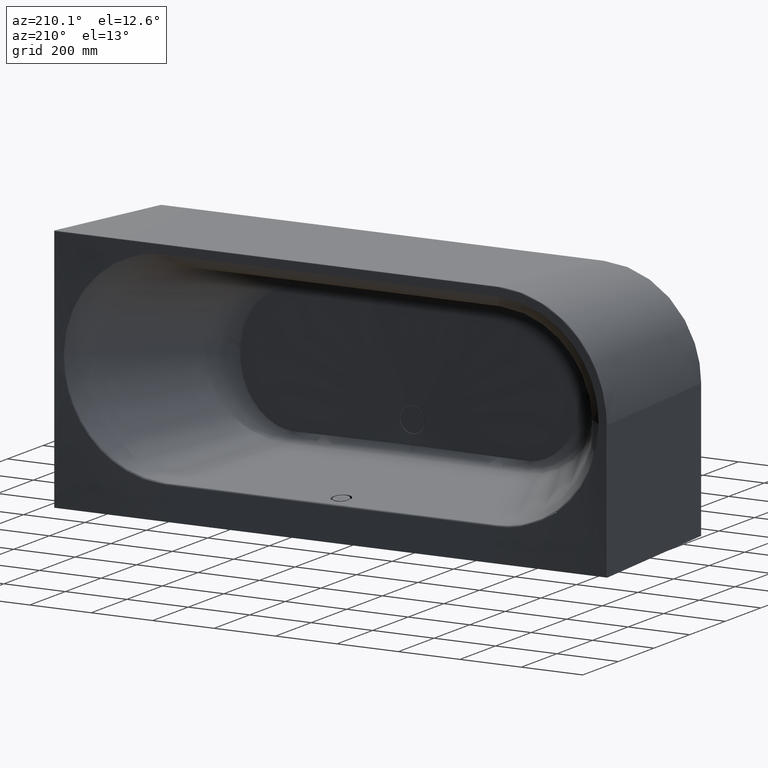
[diagram: clean part render]
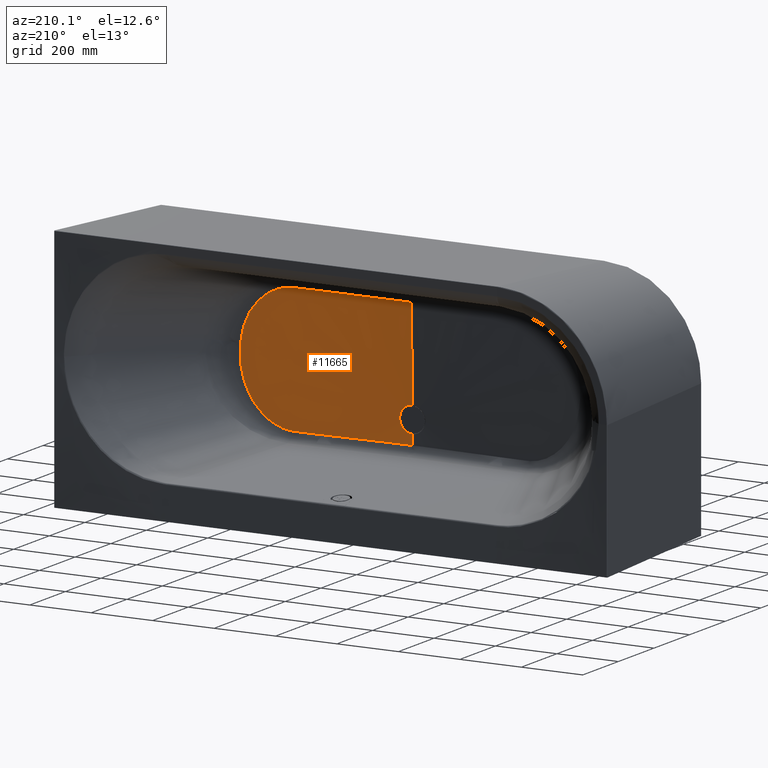
[diagram: same view with one face highlighted and labeled with its STEP entity id]
A machine part, auxiliary view. The second image highlights one B-rep face of the part: STEP entity #11665.
In plain terms, the highlighted conical surface has half-angle 88.5 deg.
Its self-contained STEP definition (entity closure, byte-faithful):
#2704=CARTESIAN_POINT('',(0.E0,-4.599474720275E2,-1.338874556674E2));
#2705=DIRECTION('',(0.E0,1.E0,0.E0));
#2706=DIRECTION('',(0.E0,0.E0,1.E0));
#2707=AXIS2_PLACEMENT_3D('',#2704,#2705,#2706);
#2709=CARTESIAN_POINT('',(-7.786323620313E-9,-4.591004420748E2,
-2.082401845906E2));
#2710=CARTESIAN_POINT('',(1.650915897211E0,-4.591004414759E2,
-2.082402131988E2));
#2711=CARTESIAN_POINT('',(4.935865286333E0,-4.590975894704E2,
-2.082396367829E2));
#2712=CARTESIAN_POINT('',(9.873326611859E0,-4.590848259537E2,
-2.082371513231E2));
#2713=CARTESIAN_POINT('',(1.480828591157E1,-4.590637337074E2,
-2.082331718072E2));
#2714=CARTESIAN_POINT('',(1.974789894105E1,-4.590345470903E2,
-2.082279346083E2));
#2715=CARTESIAN_POINT('',(2.469883357696E1,-4.589975248142E2,
-2.082217488496E2));
#2716=CARTESIAN_POINT('',(2.967275630651E1,-4.589529101565E2,
-2.082149481570E2));
#2717=CARTESIAN_POINT('',(3.468442830560E1,-4.589008968055E2,
-2.082078773653E2));
#2718=CARTESIAN_POINT('',(3.975168728515E1,-4.588416051759E2,
-2.082008719244E2));
#2719=CARTESIAN_POINT('',(4.489480469652E1,-4.587750690995E2,
-2.081942510560E2));
#2720=CARTESIAN_POINT('',(5.013616963831E1,-4.587012288354E2,
-2.081883141830E2));
#2721=CARTESIAN_POINT('',(5.550005825305E1,-4.586199283577E2,
-2.081833418770E2));
#2722=CARTESIAN_POINT('',(6.101258423221E1,-4.585309141348E2,
-2.081795986273E2));
#2723=CARTESIAN_POINT('',(6.670178195909E1,-4.584338339458E2,
-2.081773366687E2));
#2724=CARTESIAN_POINT('',(7.259781499419E1,-4.583282345548E2,
-2.081768000180E2));
#2725=CARTESIAN_POINT('',(7.873329155187E1,-4.582135575761E2,
-2.081782283037E2));
#2726=CARTESIAN_POINT('',(8.514368049998E1,-4.580891330352E2,
-2.081818600896E2));
#2727=CARTESIAN_POINT('',(9.186782704157E1,-4.579541702395E2,
-2.081879354709E2));
#2728=CARTESIAN_POINT('',(9.894857509752E1,-4.578077455647E2,
-2.081966977129E2));
#2729=CARTESIAN_POINT('',(1.064335105564E2,-4.576487866918E2,
-2.082083936066E2));
#2730=CARTESIAN_POINT('',(1.143758466970E2,-4.574760527118E2,
-2.082232720811E2));
#2731=CARTESIAN_POINT('',(1.228354829343E2,-4.572881093027E2,
-2.082415803511E2));
#2732=CARTESIAN_POINT('',(1.318802752743E2,-4.570832980022E2,
-2.082635565150E2));
#2733=CARTESIAN_POINT('',(1.415875763656E2,-4.568596981314E2,
-2.082894169273E2));
#2734=CARTESIAN_POINT('',(1.520461103344E2,-4.566150796650E2,
-2.083193359236E2));
#2735=CARTESIAN_POINT('',(1.633582635682E2,-4.563468450541E2,
-2.083534136836E2));
#2736=CARTESIAN_POINT('',(1.756430630377E2,-4.560519529518E2,
-2.083916279851E2));
#2737=CARTESIAN_POINT('',(1.890392007897E2,-4.557268399570E2,
-2.084337545054E2));
#2738=CARTESIAN_POINT('',(2.037120110747E2,-4.553672424803E2,
-2.084792652832E2));
#2739=CARTESIAN_POINT('',(2.198500577651E2,-4.549682757979E2,
-2.085270982391E2));
#2740=CARTESIAN_POINT('',(2.377049700598E2,-4.545234342490E2,
-2.085755495818E2));
#2741=CARTESIAN_POINT('',(2.575026767032E2,-4.540267898601E2,
-2.086213187438E2));
#2742=CARTESIAN_POINT('',(2.797020498868E2,-4.534665580398E2,
-2.086602676698E2));
#2743=CARTESIAN_POINT('',(3.048773141846E2,-4.528276876542E2,
-2.086829933329E2));
#2744=CARTESIAN_POINT('',(3.286595281837E2,-4.522215110021E2,
-2.086778678380E2));
#2745=CARTESIAN_POINT('',(3.488560974550E2,-4.517048833585E2,
-2.086562057207E2));
#2746=CARTESIAN_POINT('',(3.670663008009E2,-4.512392005192E2,
-2.085948929944E2));
#2747=CARTESIAN_POINT('',(3.779742338080E2,-4.509569028190E2,
-2.086113983646E2));
#2748=CARTESIAN_POINT('',(3.831061649916E2,-4.508271108222E2,
-2.084702241403E2));
#2750=CARTESIAN_POINT('',(3.831061649916E2,-4.508271108222E2,
-2.084702241403E2));
#2751=CARTESIAN_POINT('',(3.834467879353E2,-4.508184026836E2,
-2.084608274991E2));
#2752=CARTESIAN_POINT('',(3.841362839620E2,-4.508007860164E2,
-2.084394807465E2));
#2753=CARTESIAN_POINT('',(3.851946385636E2,-4.507737762908E2,
-2.083996935805E2));
#2754=CARTESIAN_POINT('',(3.859175813072E2,-4.507553451965E2,
-2.083681951603E2));
#2755=CARTESIAN_POINT('',(3.862832924854E2,-4.507460258605E2,
-2.083512427456E2));
#2757=CARTESIAN_POINT('',(3.862832924854E2,-4.507460258605E2,
-2.083512427456E2));
#2758=CARTESIAN_POINT('',(3.864333709645E2,-4.507422014372E2,
-2.083442873378E2));
#2759=CARTESIAN_POINT('',(3.867332577776E2,-4.507345605563E2,
-2.083301208088E2));
#2760=CARTESIAN_POINT('',(3.871822713319E2,-4.507231237261E2,
-2.083080140399E2));
#2761=CARTESIAN_POINT('',(3.874810699549E2,-4.507155157670E2,
-2.082926455436E2));
#2762=CARTESIAN_POINT('',(3.876303321864E2,-4.507117160349E2,
-2.082847890645E2));
#2764=CARTESIAN_POINT('',(3.876303321864E2,-4.507117160349E2,
-2.082847890645E2));
#2765=CARTESIAN_POINT('',(3.901088435943E2,-4.506486211921E2,
-2.081543278821E2));
#2766=CARTESIAN_POINT('',(3.951201764818E2,-4.505216956361E2,
-2.077454889339E2));
#2767=CARTESIAN_POINT('',(4.028086730289E2,-4.503288047025E2,
-2.066679425711E2));
#2768=CARTESIAN_POINT('',(4.106336937821E2,-4.501341784881E2,
-2.051092942260E2));
#2769=CARTESIAN_POINT('',(4.185692468638E2,-4.499383096816E2,
-2.030539672499E2));
#2770=CARTESIAN_POINT('',(4.265856992923E2,-4.497417396855E2,
-2.004882037641E2));
#2771=CARTESIAN_POINT('',(4.346514218951E2,-4.495450167899E2,
-1.974006149576E2));
#2772=CARTESIAN_POINT('',(4.427323304969E2,-4.493487100456E2,
-1.937825758651E2));
#2773=CARTESIAN_POINT('',(4.507920423951E2,-4.491534082105E2,
-1.896287132323E2));
#2774=CARTESIAN_POINT('',(4.587924302397E2,-4.489597103123E2,
-1.849371008605E2));
#2775=CARTESIAN_POINT('',(4.666934184858E2,-4.487682356338E2,
-1.797099867790E2));
#2776=CARTESIAN_POINT('',(4.744557491593E2,-4.485795625176E2,
-1.739523027717E2));
#2777=CARTESIAN_POINT('',(4.820366450427E2,-4.483943398138E2,
-1.676753149564E2));
#2778=CARTESIAN_POINT('',(4.894022919686E2,-4.482129913507E2,
-1.608874584452E2));
#2779=CARTESIAN_POINT('',(4.965052068616E2,-4.480362629264E2,
-1.536092540216E2));
#2780=CARTESIAN_POINT('',(5.031587729223E2,-4.478684470632E2,
-1.460363988589E2));
#2781=CARTESIAN_POINT('',(5.092496314347E2,-4.477122682960E2,
-1.383600588094E2));
#2782=CARTESIAN_POINT('',(5.148177293475E2,-4.475666953632E2,
-1.306085647013E2));
#2783=CARTESIAN_POINT('',(5.198931864803E2,-4.474309628117E2,
-1.228093195786E2));
#2784=CARTESIAN_POINT('',(5.245028678237E2,-4.473044217601E2,
-1.149895277764E2));
#2785=CARTESIAN_POINT('',(5.286756490859E2,-4.471863834189E2,
-1.071664766187E2));
#2786=CARTESIAN_POINT('',(5.324377496900E2,-4.470762378328E2,
-9.935547262747E1));
#2787=CARTESIAN_POINT('',(5.358140228139E2,-4.469734154589E2,
-9.156851131128E1));
#2788=CARTESIAN_POINT('',(5.388275996205E2,-4.468773941125E2,
-8.381548415742E1));
#2789=CARTESIAN_POINT('',(5.415001676903E2,-4.467876893214E2,
-7.610426592315E1));
#2790=CARTESIAN_POINT('',(5.438520386362E2,-4.467038510243E2,
-6.844109290156E1));
#2791=CARTESIAN_POINT('',(5.459022903043E2,-4.466254584464E2,
-6.083072054525E1));
#2792=CARTESIAN_POINT('',(5.476688789264E2,-4.465521156710E2,
-5.327650792228E1));
#2793=CARTESIAN_POINT('',(5.491687050063E2,-4.464834494434E2,
-4.578066764741E1));
#2794=CARTESIAN_POINT('',(5.504177485360E2,-4.464191021430E2,
-3.834383341775E1));
#2795=CARTESIAN_POINT('',(5.514309531734E2,-4.463587406168E2,
-3.096653285604E1));
#2796=CARTESIAN_POINT('',(5.522226516113E2,-4.463020240900E2,
-2.364531289338E1));
#2797=CARTESIAN_POINT('',(5.528057060693E2,-4.462486789704E2,
-1.638294763571E1));
#2798=CARTESIAN_POINT('',(5.531933548297E2,-4.461983198995E2,
-9.164507394141E0));
#2799=CARTESIAN_POINT('',(5.533955595816E2,-4.461508111818E2,
-2.005782857830E0));
#2800=CARTESIAN_POINT('',(5.534265809105E2,-4.461057057658E2,5.113760293315E0));
#2801=CARTESIAN_POINT('',(5.532861764865E2,-4.460623701030E2,1.229240638979E1));
#2802=CARTESIAN_POINT('',(5.529553342165E2,-4.460210383384E2,1.955331861244E1));
#2803=CARTESIAN_POINT('',(5.525964758557E2,-4.459950337588E2,2.444862391292E1));
#2804=CARTESIAN_POINT('',(5.523799017021E2,-4.459824925325E2,2.690621281673E1));
#2806=CARTESIAN_POINT('',(5.523799017021E2,-4.459824925325E2,2.690621281673E1));
#2807=CARTESIAN_POINT('',(5.521589483887E2,-4.459696827228E2,2.941554092295E1));
#2808=CARTESIAN_POINT('',(5.516394077871E2,-4.459450358400E2,3.445406782307E1));
#2809=CARTESIAN_POINT('',(5.506110751425E2,-4.459112677226E2,4.207305666185E1));
#2810=CARTESIAN_POINT('',(5.493144305256E2,-4.458809902443E2,4.976177854119E1));
#2811=CARTESIAN_POINT('',(5.477310886831E2,-4.458545482816E2,5.751656246347E1));
#2812=CARTESIAN_POINT('',(5.458418819187E2,-4.458322955293E2,6.533379295336E1));
#2813=CARTESIAN_POINT('',(5.436269806024E2,-4.458146037917E2,7.320821530026E1));
#2814=CARTESIAN_POINT('',(5.410659554255E2,-4.458018668123E2,8.113253235376E1));
#2815=CARTESIAN_POINT('',(5.381376640015E2,-4.457945032174E2,8.909752001871E1));
#2816=CARTESIAN_POINT('',(5.348202973145E2,-4.457929612967E2,9.709156625551E1));
#2817=CARTESIAN_POINT('',(5.310914315907E2,-4.457977230971E2,1.051003537866E2));
#2818=CARTESIAN_POINT('',(5.269280026496E2,-4.458093090479E2,1.131067113336E2));
#2819=CARTESIAN_POINT('',(5.223066890045E2,-4.458282821926E2,1.210896679438E2));
#2820=CARTESIAN_POINT('',(5.172035916332E2,-4.458552528966E2,1.290251663694E2));
#2821=CARTESIAN_POINT('',(5.115952929766E2,-4.458908879211E2,1.368831368518E2));
#2822=CARTESIAN_POINT('',(5.054629014089E2,-4.459358580119E2,1.446264658539E2));
#2823=CARTESIAN_POINT('',(4.987572741209E2,-4.459911934609E2,1.522420969290E2));
#2824=CARTESIAN_POINT('',(4.916266417404E2,-4.460562262192E2,1.595084594311E2));
#2825=CARTESIAN_POINT('',(4.842375887811E2,-4.461295575651E2,1.662652599938E2));
#2826=CARTESIAN_POINT('',(4.765855851238E2,-4.462112792687E2,1.725376539431E2));
#2827=CARTESIAN_POINT('',(4.687227566071E2,-4.463009527045E2,1.782963947536E2));
#2828=CARTESIAN_POINT('',(4.606832571090E2,-4.463982830598E2,1.835342371397E2));
#2829=CARTESIAN_POINT('',(4.525081331134E2,-4.465028842574E2,1.882411372359E2));
#2830=CARTESIAN_POINT('',(4.442369617486E2,-4.466143569333E2,1.924120319869E2));
#2831=CARTESIAN_POINT('',(4.359101802596E2,-4.467322621832E2,1.960445408867E2));
#2832=CARTESIAN_POINT('',(4.275674344245E2,-4.468561382377E2,1.991399087876E2));
#2833=CARTESIAN_POINT('',(4.192470393810E2,-4.469855067414E2,2.017028483305E2));
#2834=CARTESIAN_POINT('',(4.109855001539E2,-4.471198792969E2,2.037413142536E2));
#2835=CARTESIAN_POINT('',(4.028174307861E2,-4.472587557021E2,2.052663314484E2));
#2836=CARTESIAN_POINT('',(3.947733308950E2,-4.474016700544E2,2.062914115861E2));
#2837=CARTESIAN_POINT('',(3.895207053229E2,-4.474991608094E2,2.066517716887E2));
#2838=CARTESIAN_POINT('',(3.869210349575E2,-4.475484792277E2,2.067544283465E2));
#2840=CARTESIAN_POINT('',(3.869210349575E2,-4.475484792277E2,2.067544283465E2));
#2841=CARTESIAN_POINT('',(3.867689491216E2,-4.475513644561E2,2.067604337289E2));
#2842=CARTESIAN_POINT('',(3.864647405694E2,-4.475571395573E2,2.067721208719E2));
#2843=CARTESIAN_POINT('',(3.860083239037E2,-4.475658143803E2,2.067887759730E2));
#2844=CARTESIAN_POINT('',(3.857039757451E2,-4.475716046367E2,2.067993595418E2));
#2845=CARTESIAN_POINT('',(3.855517850739E2,-4.475745012307E2,2.068045373463E2));
#2847=CARTESIAN_POINT('',(3.855517850739E2,-4.475745012307E2,2.068045373463E2));
#2848=CARTESIAN_POINT('',(3.852222791557E2,-4.475807723508E2,2.068157626892E2));
#2849=CARTESIAN_POINT('',(3.845724218572E2,-4.475931611460E2,2.068362631628E2));
#2850=CARTESIAN_POINT('',(3.836285631904E2,-4.476112104037E2,2.068615052771E2));
#2851=CARTESIAN_POINT('',(3.830128990079E2,-4.476230390137E2,2.068741995157E2));
#2852=CARTESIAN_POINT('',(3.827090450932E2,-4.476288838183E2,2.068798054038E2));
#2854=CARTESIAN_POINT('',(3.827090450932E2,-4.476288838183E2,2.068798054038E2));
#2855=CARTESIAN_POINT('',(3.803472928172E2,-4.476740810408E2,2.069261430574E2));
#2856=CARTESIAN_POINT('',(3.753512033799E2,-4.477712971277E2,2.069472072550E2));
#2857=CARTESIAN_POINT('',(3.671195897965E2,-4.479299798228E2,2.069501044284E2));
#2858=CARTESIAN_POINT('',(3.579725164710E2,-4.481044893791E2,2.069565752138E2));
#2859=CARTESIAN_POINT('',(3.477956371887E2,-4.482962552196E2,2.069573781200E2));
#2860=CARTESIAN_POINT('',(3.364260594806E2,-4.485073998784E2,2.069533961482E2));
#2861=CARTESIAN_POINT('',(3.236504543518E2,-4.487405239421E2,2.069425694902E2));
#2862=CARTESIAN_POINT('',(3.092726582536E2,-4.489974107040E2,2.069232603592E2));
#2863=CARTESIAN_POINT('',(2.926282210618E2,-4.492870017010E2,2.068923707079E2));
#2864=CARTESIAN_POINT('',(2.744324043286E2,-4.495928411896E2,2.068492273902E2));
#2865=CARTESIAN_POINT('',(2.566122270988E2,-4.498806754783E2,2.067992017841E2));
#2866=CARTESIAN_POINT('',(2.392876445698E2,-4.501488268799E2,2.067448429202E2));
#2867=CARTESIAN_POINT('',(2.222373896475E2,-4.504005473495E2,2.066870932659E2));
#2868=CARTESIAN_POINT('',(2.054991210217E2,-4.506350092728E2,2.066275163800E2));
#2869=CARTESIAN_POINT('',(1.890037406008E2,-4.508529499891E2,2.065671543227E2));
#2870=CARTESIAN_POINT('',(1.727239878685E2,-4.510544001106E2,2.065070472729E2));
#2871=CARTESIAN_POINT('',(1.566220177253E2,-4.512394775656E2,2.064480923655E2));
#2872=CARTESIAN_POINT('',(1.406667849499E2,-4.514081376346E2,2.063911284567E2));
#2873=CARTESIAN_POINT('',(1.248287974266E2,-4.515602587748E2,2.063369408949E2));
#2874=CARTESIAN_POINT('',(1.090822859421E2,-4.516956282612E2,2.062862866449E2));
#2875=CARTESIAN_POINT('',(9.340434043912E1,-4.518139678629E2,2.062399087704E2));
#2876=CARTESIAN_POINT('',(7.777738569917E1,-4.519149415485E2,2.061985467748E2));
#2877=CARTESIAN_POINT('',(6.218363189275E1,-4.519982065208E2,2.061629566230E2));
#2878=CARTESIAN_POINT('',(4.662041427997E1,-4.520633861179E2,2.061338642112E2));
#2879=CARTESIAN_POINT('',(3.106189694143E1,-4.521102180394E2,2.061121648072E2));
#2880=CARTESIAN_POINT('',(1.554250884707E1,-4.521383816181E2,2.060982069692E2));
#2881=CARTESIAN_POINT('',(5.189796780805E0,-4.521446691052E2,2.060955177018E2));
#2882=CARTESIAN_POINT('',(2.163294895248E-8,-4.521446763168E2,
2.060952508747E2));
#2927=DIRECTION('',(-7.257454862031E-11,-2.617694850085E-2,-9.996573249705E-1));
#2928=VECTOR('',#2927,2.980788883943E2);
#2929=CARTESIAN_POINT('',(2.163294895248E-8,-4.521446763168E2,
2.060952508747E2));
#2930=LINE('',#2929,#2928);
#3106=DIRECTION('',(2.406318841921E-10,-2.617695015758E-2,9.996573249271E-1));
#3107=VECTOR('',#3106,3.235785481391E1);
#3108=CARTESIAN_POINT('',(-7.786323620313E-9,-4.591004420748E2,
-2.082401845906E2));
#3109=LINE('',#3108,#3107);
#3680=CARTESIAN_POINT('',(0.E0,-4.599474720275E2,-9.188149332779E1));
#3681=CARTESIAN_POINT('',(0.E0,-4.599474720275E2,-1.758934180070E2));
#3682=VERTEX_POINT('',#3680);
#3683=VERTEX_POINT('',#3681);
#3715=VERTEX_POINT('',#2806);
#3716=VERTEX_POINT('',#2838);
#3719=VERTEX_POINT('',#2750);
#3720=VERTEX_POINT('',#2755);
#3790=CARTESIAN_POINT('',(7.944500323830E-8,-4.521446761910E2,
2.060952508714E2));
#3791=VERTEX_POINT('',#3790);
#3792=CARTESIAN_POINT('',(-3.143018316388E-8,-4.591004420846E2,
-2.082401845909E2));
#3794=VERTEX_POINT('',#3792);
#3798=VERTEX_POINT('',#2854);
#3958=VERTEX_POINT('',#2847);
#3960=VERTEX_POINT('',#2764);
#11637=CARTESIAN_POINT('',(0.E0,-4.528706022285E2,-1.338874556674E2));
#11638=DIRECTION('',(0.E0,1.E0,0.E0));
#11639=DIRECTION('',(0.E0,0.E0,1.E0));
#11640=AXIS2_PLACEMENT_3D('',#11637,#11638,#11639);
#11641=CONICAL_SURFACE('',#11640,3.122607166098E2,8.85E1);
#11643=ORIENTED_EDGE('',*,*,#11642,.T.);
#11645=ORIENTED_EDGE('',*,*,#11644,.F.);
#11647=ORIENTED_EDGE('',*,*,#11646,.T.);
#11649=ORIENTED_EDGE('',*,*,#11648,.T.);
#11651=ORIENTED_EDGE('',*,*,#11650,.T.);
#11652=ORIENTED_EDGE('',*,*,#11627,.T.);
#11654=ORIENTED_EDGE('',*,*,#11653,.T.);
#11656=ORIENTED_EDGE('',*,*,#11655,.T.);
#11658=ORIENTED_EDGE('',*,*,#11657,.T.);
#11660=ORIENTED_EDGE('',*,*,#11659,.T.);
#11662=ORIENTED_EDGE('',*,*,#11661,.T.);
#11663=EDGE_LOOP('',(#11643,#11645,#11647,#11649,#11651,#11652,#11654,#11656,
#11658,#11660,#11662));
#11664=FACE_OUTER_BOUND('',#11663,.F.);
#11665=ADVANCED_FACE('',(#11664),#11641,.F.);
#2708=CIRCLE('',#2707,4.200596233958E1);
#2749=B_SPLINE_CURVE_WITH_KNOTS('',3,(#2709,#2710,#2711,#2712,#2713,#2714,#2715,
#2716,#2717,#2718,#2719,#2720,#2721,#2722,#2723,#2724,#2725,#2726,#2727,#2728,
#2729,#2730,#2731,#2732,#2733,#2734,#2735,#2736,#2737,#2738,#2739,#2740,#2741,
#2742,#2743,#2744,#2745,#2746,#2747,#2748),.UNSPECIFIED.,.F.,.F.,(4,1,1,1,1,1,1,
1,1,1,1,1,1,1,1,1,1,1,1,1,1,1,1,1,1,1,1,1,1,1,1,1,1,1,1,1,1,4),(0.E0,
2.702702702703E-2,5.405405405405E-2,8.108108108108E-2,1.081081081081E-1,
1.351351351351E-1,1.621621621622E-1,1.891891891892E-1,2.162162162162E-1,
2.432432432432E-1,2.702702702703E-1,2.972972972973E-1,3.243243243243E-1,
3.513513513514E-1,3.783783783784E-1,4.054054054054E-1,4.324324324324E-1,
4.594594594595E-1,4.864864864865E-1,5.135135135135E-1,5.405405405405E-1,
5.675675675676E-1,5.945945945946E-1,6.216216216216E-1,6.486486486486E-1,
6.756756756757E-1,7.027027027027E-1,7.297297297297E-1,7.567567567568E-1,
7.837837837838E-1,8.108108108108E-1,8.378378378378E-1,8.648648648649E-1,
8.918918918919E-1,9.189189189189E-1,9.459459459459E-1,9.729729729730E-1,1.E0),
.UNSPECIFIED.);
#2756=B_SPLINE_CURVE_WITH_KNOTS('',3,(#2750,#2751,#2752,#2753,#2754,#2755),
.UNSPECIFIED.,.F.,.F.,(4,1,1,4),(0.E0,3.333333333333E-1,6.666666666667E-1,1.E0),
.UNSPECIFIED.);
#2763=B_SPLINE_CURVE_WITH_KNOTS('',3,(#2757,#2758,#2759,#2760,#2761,#2762),
.UNSPECIFIED.,.F.,.F.,(4,1,1,4),(0.E0,3.333333333333E-1,6.666666666667E-1,1.E0),
.UNSPECIFIED.);
#2805=B_SPLINE_CURVE_WITH_KNOTS('',3,(#2764,#2765,#2766,#2767,#2768,#2769,#2770,
#2771,#2772,#2773,#2774,#2775,#2776,#2777,#2778,#2779,#2780,#2781,#2782,#2783,
#2784,#2785,#2786,#2787,#2788,#2789,#2790,#2791,#2792,#2793,#2794,#2795,#2796,
#2797,#2798,#2799,#2800,#2801,#2802,#2803,#2804),.UNSPECIFIED.,.F.,.F.,(4,1,1,1,
1,1,1,1,1,1,1,1,1,1,1,1,1,1,1,1,1,1,1,1,1,1,1,1,1,1,1,1,1,1,1,1,1,1,4),(0.E0,
2.631578947368E-2,5.263157894737E-2,7.894736842105E-2,1.052631578947E-1,
1.315789473684E-1,1.578947368421E-1,1.842105263158E-1,2.105263157895E-1,
2.368421052632E-1,2.631578947368E-1,2.894736842105E-1,3.157894736842E-1,
3.421052631579E-1,3.684210526316E-1,3.947368421053E-1,4.210526315789E-1,
4.473684210526E-1,4.736842105263E-1,5.E-1,5.263157894737E-1,5.526315789474E-1,
5.789473684211E-1,6.052631578947E-1,6.315789473684E-1,6.578947368421E-1,
6.842105263158E-1,7.105263157895E-1,7.368421052632E-1,7.631578947368E-1,
7.894736842105E-1,8.157894736842E-1,8.421052631579E-1,8.684210526316E-1,
8.947368421053E-1,9.210526315789E-1,9.473684210526E-1,9.736842105263E-1,1.E0),
.UNSPECIFIED.);
#2839=B_SPLINE_CURVE_WITH_KNOTS('',3,(#2806,#2807,#2808,#2809,#2810,#2811,#2812,
#2813,#2814,#2815,#2816,#2817,#2818,#2819,#2820,#2821,#2822,#2823,#2824,#2825,
#2826,#2827,#2828,#2829,#2830,#2831,#2832,#2833,#2834,#2835,#2836,#2837,#2838),
.UNSPECIFIED.,.F.,.F.,(4,1,1,1,1,1,1,1,1,1,1,1,1,1,1,1,1,1,1,1,1,1,1,1,1,1,1,1,
1,1,4),(0.E0,3.333333333333E-2,6.666666666667E-2,1.E-1,1.333333333333E-1,
1.666666666667E-1,2.E-1,2.333333333333E-1,2.666666666667E-1,3.E-1,
3.333333333333E-1,3.666666666667E-1,4.E-1,4.333333333333E-1,4.666666666667E-1,
5.E-1,5.333333333333E-1,5.666666666667E-1,6.E-1,6.333333333333E-1,
6.666666666667E-1,7.E-1,7.333333333333E-1,7.666666666667E-1,8.E-1,
8.333333333333E-1,8.666666666667E-1,9.E-1,9.333333333333E-1,9.666666666667E-1,
1.E0),.UNSPECIFIED.);
#2846=B_SPLINE_CURVE_WITH_KNOTS('',3,(#2840,#2841,#2842,#2843,#2844,#2845),
.UNSPECIFIED.,.F.,.F.,(4,1,1,4),(0.E0,3.333333333333E-1,6.666666666667E-1,1.E0),
.UNSPECIFIED.);
#2853=B_SPLINE_CURVE_WITH_KNOTS('',3,(#2847,#2848,#2849,#2850,#2851,#2852),
.UNSPECIFIED.,.F.,.F.,(4,1,1,4),(0.E0,3.333333333333E-1,6.666666666667E-1,1.E0),
.UNSPECIFIED.);
#2883=B_SPLINE_CURVE_WITH_KNOTS('',3,(#2854,#2855,#2856,#2857,#2858,#2859,#2860,
#2861,#2862,#2863,#2864,#2865,#2866,#2867,#2868,#2869,#2870,#2871,#2872,#2873,
#2874,#2875,#2876,#2877,#2878,#2879,#2880,#2881,#2882),.UNSPECIFIED.,.F.,.F.,(4,
1,1,1,1,1,1,1,1,1,1,1,1,1,1,1,1,1,1,1,1,1,1,1,1,1,4),(0.E0,3.846153846154E-2,
7.692307692308E-2,1.153846153846E-1,1.538461538462E-1,1.923076923077E-1,
2.307692307692E-1,2.692307692308E-1,3.076923076923E-1,3.461538461538E-1,
3.846153846154E-1,4.230769230769E-1,4.615384615385E-1,5.E-1,5.384615384615E-1,
5.769230769231E-1,6.153846153846E-1,6.538461538462E-1,6.923076923077E-1,
7.307692307692E-1,7.692307692308E-1,8.076923076923E-1,8.461538461538E-1,
8.846153846154E-1,9.230769230769E-1,9.615384615385E-1,1.E0),.UNSPECIFIED.);
#11627=EDGE_CURVE('',#3960,#3715,#2805,.T.);
#11642=EDGE_CURVE('',#3682,#3683,#2708,.T.);
#11644=EDGE_CURVE('',#3794,#3683,#3109,.T.);
#11646=EDGE_CURVE('',#3794,#3719,#2749,.T.);
#11648=EDGE_CURVE('',#3719,#3720,#2756,.T.);
#11650=EDGE_CURVE('',#3720,#3960,#2763,.T.);
#11653=EDGE_CURVE('',#3715,#3716,#2839,.T.);
#11655=EDGE_CURVE('',#3716,#3958,#2846,.T.);
#11657=EDGE_CURVE('',#3958,#3798,#2853,.T.);
#11659=EDGE_CURVE('',#3798,#3791,#2883,.T.);
#11661=EDGE_CURVE('',#3791,#3682,#2930,.T.);